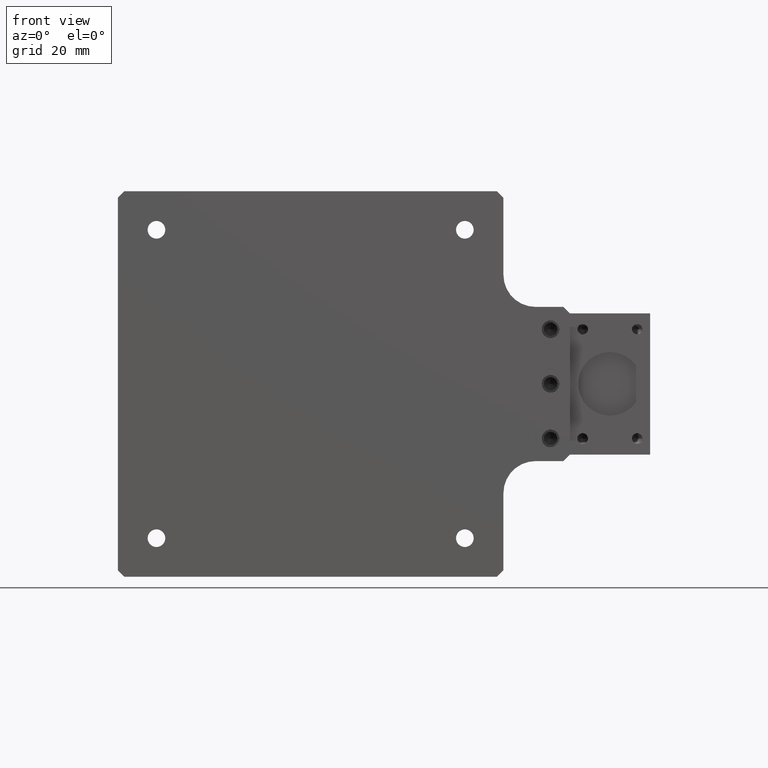
[diagram: clean part render]
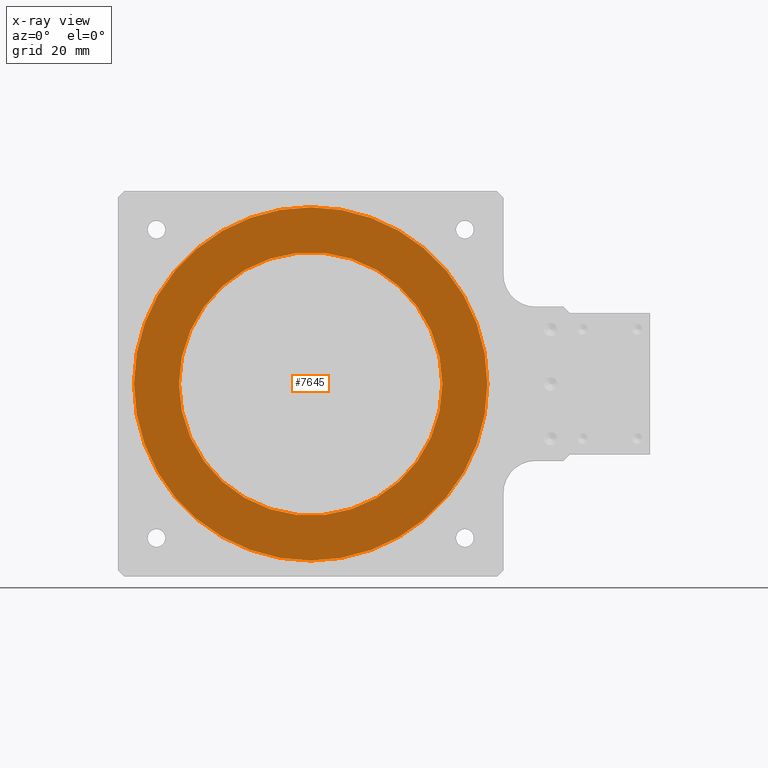
[diagram: x-ray — body ghosted, one internal face saturated and labeled with its STEP entity id]
A machine part, front view, then the same camera in x-ray: the body is ghosted and one INTERNAL B-rep face — a face not visible from any outside direction — is saturated and labeled: STEP entity #7645.
In plain terms, the highlighted planar face has unit normal (0, 1, 0).
Its self-contained STEP definition (entity closure, byte-faithful):
#7520=CARTESIAN_POINT('',(0.E0,0.E0,0.E0));
#7521=DIRECTION('',(0.E0,0.E0,-1.E0));
#7522=DIRECTION('',(1.E0,0.E0,0.E0));
#7523=AXIS2_PLACEMENT_3D('',#7520,#7521,#7522);
#7528=CARTESIAN_POINT('',(0.E0,0.E0,0.E0));
#7529=DIRECTION('',(0.E0,0.E0,-1.E0));
#7530=DIRECTION('',(-1.E0,0.E0,0.E0));
#7531=AXIS2_PLACEMENT_3D('',#7528,#7529,#7530);
#7536=CARTESIAN_POINT('',(0.E0,0.E0,0.E0));
#7537=DIRECTION('',(0.E0,0.E0,1.E0));
#7538=DIRECTION('',(1.E0,0.E0,0.E0));
#7539=AXIS2_PLACEMENT_3D('',#7536,#7537,#7538);
#7544=CARTESIAN_POINT('',(0.E0,0.E0,0.E0));
#7545=DIRECTION('',(0.E0,0.E0,1.E0));
#7546=DIRECTION('',(-1.E0,0.E0,0.E0));
#7547=AXIS2_PLACEMENT_3D('',#7544,#7545,#7546);
#7612=CARTESIAN_POINT('',(4.1E1,0.E0,0.E0));
#7613=CARTESIAN_POINT('',(-4.1E1,0.E0,0.E0));
#7614=VERTEX_POINT('',#7612);
#7615=VERTEX_POINT('',#7613);
#7616=CARTESIAN_POINT('',(5.5E1,0.E0,0.E0));
#7617=CARTESIAN_POINT('',(-5.5E1,1.347111479062E-14,0.E0));
#7618=VERTEX_POINT('',#7616);
#7619=VERTEX_POINT('',#7617);
#7628=CARTESIAN_POINT('',(0.E0,0.E0,0.E0));
#7629=DIRECTION('',(0.E0,0.E0,1.E0));
#7630=DIRECTION('',(1.E0,0.E0,0.E0));
#7631=AXIS2_PLACEMENT_3D('',#7628,#7629,#7630);
#7632=PLANE('',#7631);
#7634=ORIENTED_EDGE('',*,*,#7633,.T.);
#7636=ORIENTED_EDGE('',*,*,#7635,.T.);
#7637=EDGE_LOOP('',(#7634,#7636));
#7638=FACE_OUTER_BOUND('',#7637,.F.);
#7640=ORIENTED_EDGE('',*,*,#7639,.T.);
#7642=ORIENTED_EDGE('',*,*,#7641,.T.);
#7643=EDGE_LOOP('',(#7640,#7642));
#7644=FACE_BOUND('',#7643,.F.);
#7524=CIRCLE('',#7523,4.1E1);
#7532=CIRCLE('',#7531,4.1E1);
#7540=CIRCLE('',#7539,5.5E1);
#7548=CIRCLE('',#7547,5.5E1);
#7633=EDGE_CURVE('',#7618,#7619,#7540,.T.);
#7635=EDGE_CURVE('',#7619,#7618,#7548,.T.);
#7639=EDGE_CURVE('',#7614,#7615,#7524,.T.);
#7641=EDGE_CURVE('',#7615,#7614,#7532,.T.);
#7645=ADVANCED_FACE('',(#7638,#7644),#7632,.F.);